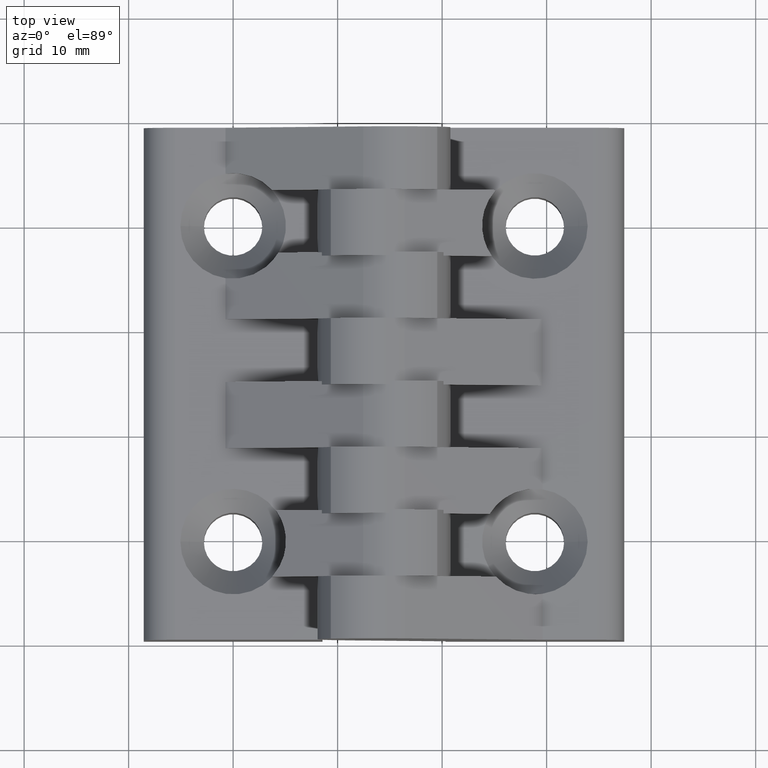
[diagram: clean part render]
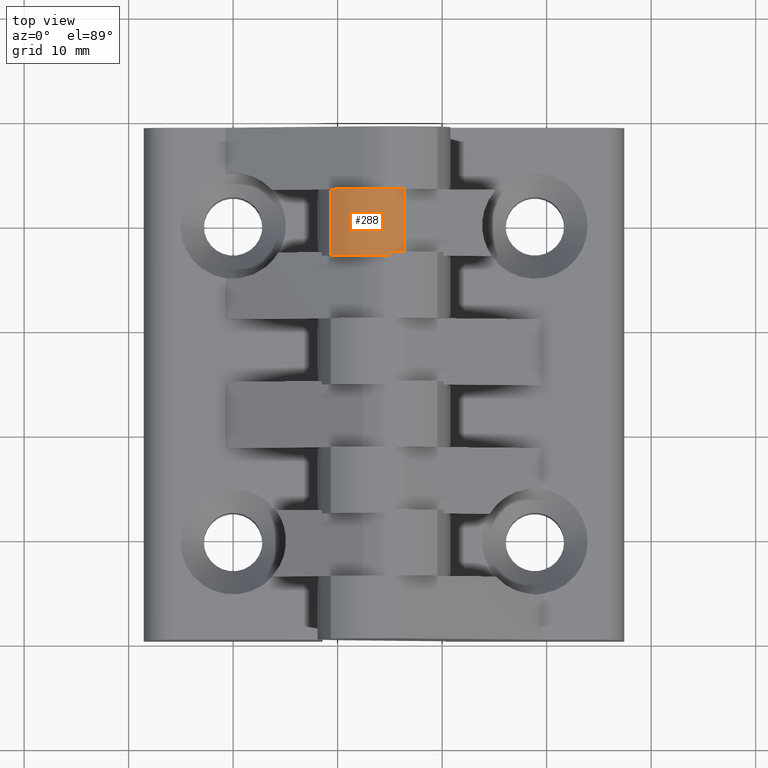
[diagram: same view with one face highlighted and labeled with its STEP entity id]
A machine part, top view. The second image highlights one B-rep face of the part: STEP entity #288.
In plain terms, the highlighted cylindrical surface (partial cylindrical patch) has radius 6 mm, axis along (-0, -1, 0).
Its self-contained STEP definition (entity closure, byte-faithful):
#138=CARTESIAN_POINT('',(16.423615982463986,3.399999999962341,18.808196010225572));
#139=VERTEX_POINT('',#138);
#140=CARTESIAN_POINT('',(16.423615982463986,-2.933333333370991,18.808196010225572));
#141=VERTEX_POINT('',#140);
#142=CARTESIAN_POINT('',(16.423615982463986,3.399999999962342,18.808196010225572));
#143=DIRECTION('',(0.0,-1.0,0.0));
#144=VECTOR('',#143,6.333333333333332);
#145=LINE('',#142,#144);
#146=EDGE_CURVE('',#139,#141,#145,.T.);
#256=CARTESIAN_POINT('',(13.423615982476122,9.399999999766344,13.612043587539972));
#257=DIRECTION('',(-3.081488E-033,-1.0,6.123234E-017));
#258=DIRECTION('',(0.500000000000001,5.302876E-017,0.866025403784438));
#259=AXIS2_PLACEMENT_3D('',#256,#257,#258);
#260=CYLINDRICAL_SURFACE('',#259,5.999999999975718);
#261=CARTESIAN_POINT('',(9.343956253720819,3.399999999962341,18.011631806598757));
#262=VERTEX_POINT('',#261);
#263=CARTESIAN_POINT('',(13.423615982476123,3.399999999962343,13.612043587539974));
#264=DIRECTION('',(3.081488E-033,1.000000000000000,-6.123234E-017));
#265=DIRECTION('',(0.500000000000001,5.302876E-017,0.866025403784438));
#266=AXIS2_PLACEMENT_3D('',#263,#264,#265);
#267=CIRCLE('',#266,5.999999999975718);
#268=EDGE_CURVE('',#262,#139,#267,.T.);
#269=ORIENTED_EDGE('',*,*,#268,.F.);
#270=CARTESIAN_POINT('',(9.343956253720819,-2.933333333370991,18.011631806598757));
#271=VERTEX_POINT('',#270);
#272=CARTESIAN_POINT('',(9.343956253720819,3.399999999962342,18.011631806598757));
#273=DIRECTION('',(0.0,-1.0,0.0));
#274=VECTOR('',#273,6.333333333333332);
#275=LINE('',#272,#274);
#276=EDGE_CURVE('',#262,#271,#275,.T.);
#277=ORIENTED_EDGE('',*,*,#276,.T.);
#278=CARTESIAN_POINT('',(13.423615982476123,-2.933333333370992,13.612043587539974));
#279=DIRECTION('',(3.081488E-033,1.000000000000000,-6.123234E-017));
#280=DIRECTION('',(0.500000000000001,5.302876E-017,0.866025403784438));
#281=AXIS2_PLACEMENT_3D('',#278,#279,#280);
#282=CIRCLE('',#281,5.999999999975718);
#283=EDGE_CURVE('',#271,#141,#282,.T.);
#284=ORIENTED_EDGE('',*,*,#283,.T.);
#285=ORIENTED_EDGE('',*,*,#146,.F.);
#286=EDGE_LOOP('',(#269,#277,#284,#285));
#287=FACE_OUTER_BOUND('',#286,.T.);
#288=ADVANCED_FACE('',(#287),#260,.T.);